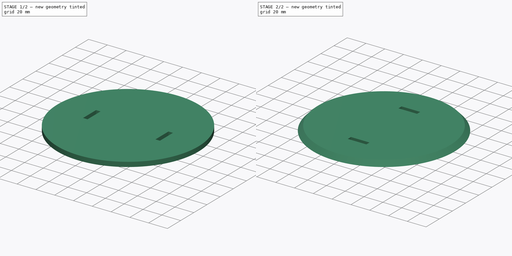
[diagram: build sequence overview — one tinted view per stage of 2, left to right]
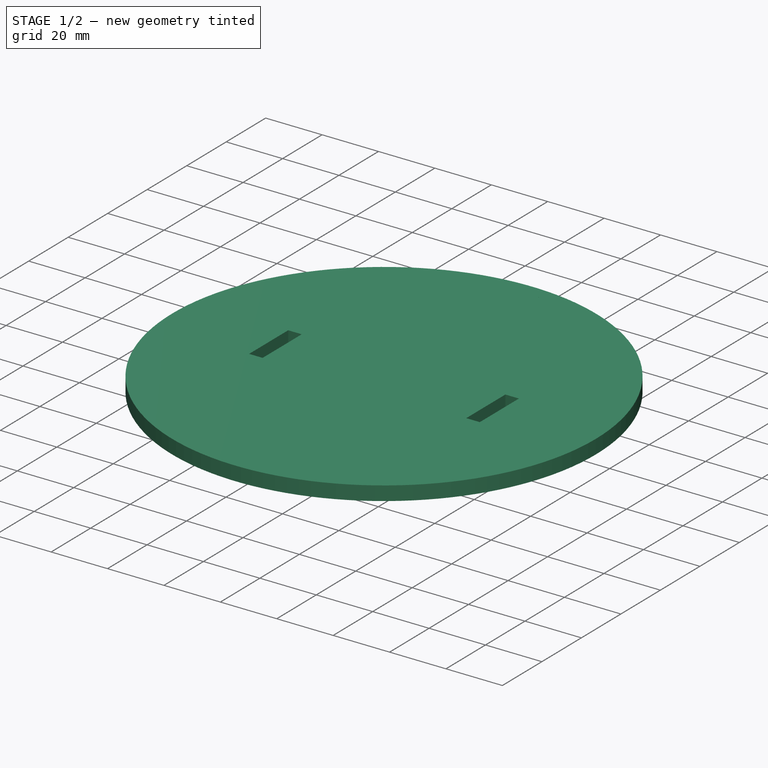
[diagram: stage 1 of 2 — iso view after this stage's code; geometry added in this stage tinted green]
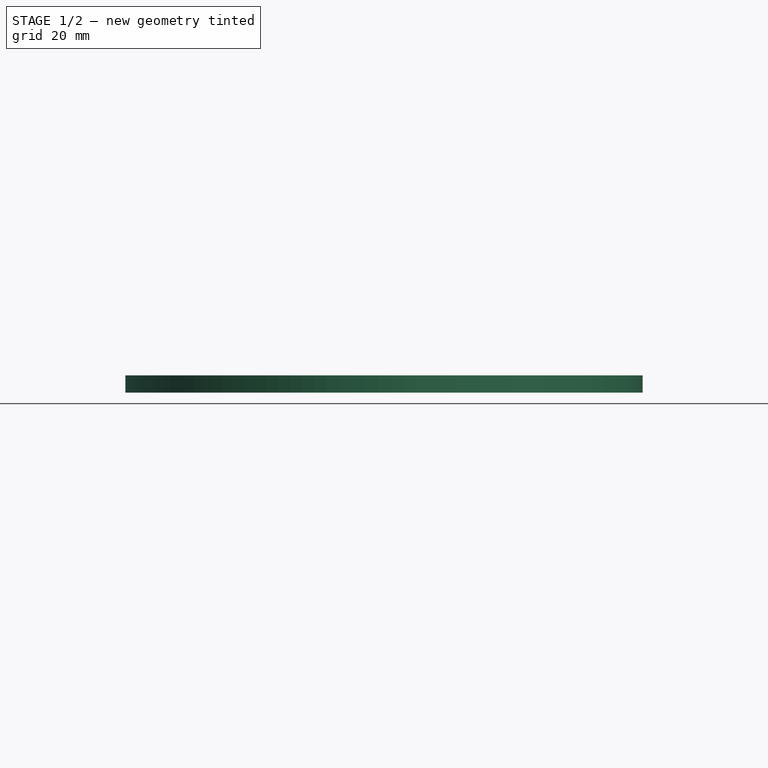
[diagram: stage 1 of 2 — front view after this stage's code; geometry added in this stage tinted green]
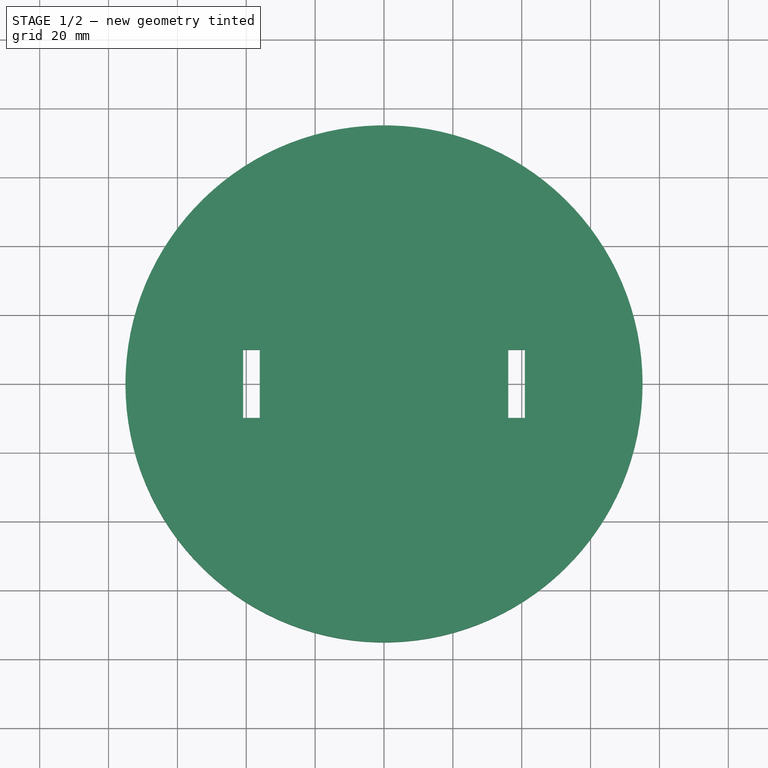
[diagram: stage 1 of 2 — top view after this stage's code; geometry added in this stage tinted green]
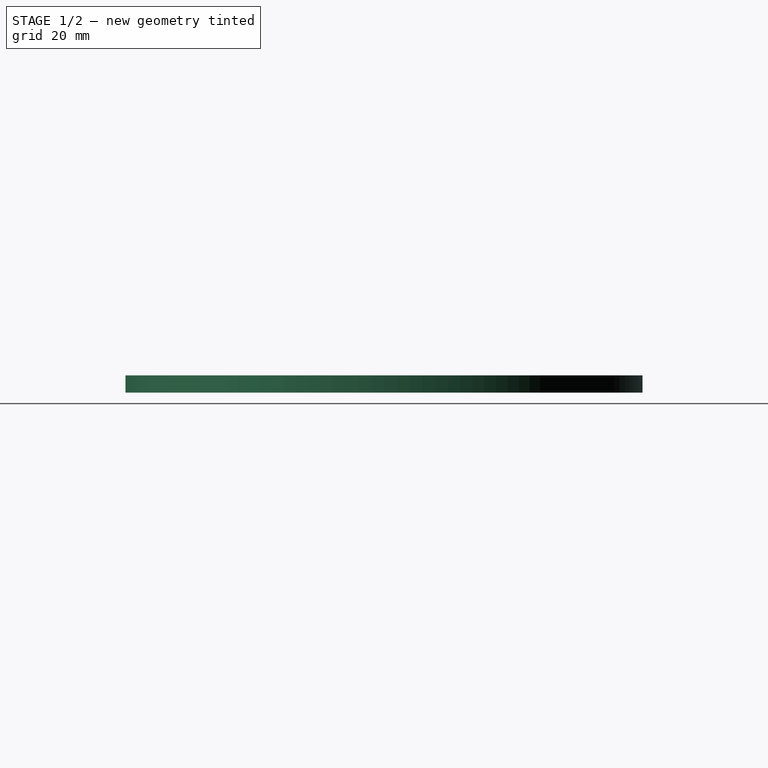
[diagram: stage 1 of 2 — right view after this stage's code; geometry added in this stage tinted green]
FCSTD DOCUMENT  (FreeCAD 0.16R6707 (Git))
Label: BowlSupport
License: All rights reserved
LicenseURL: http://en.wikipedia.org/wiki/All_rights_reserved
objects: Sketcher::SketchObject×2, PartDesign::Pad×1, PartDesign::Revolution×1, Part::Cut×1
note: 7 computed .brp shape members not serialized (recipe doc carries the construction recipe); baked Part::Feature solids carry a one-line shape summary decoded from their .brp

FEATURE [Sketcher::SketchObject] Sketch018
  sketch-geometry (9):
    g0: Circle CenterX=0 CenterY=0 CenterZ=0 NormalX=0 NormalY=0 NormalZ=1 Radius=75.1
    g1: LineSegment StartX=-40.9 StartY=9.9 StartZ=0 EndX=-36.1 EndY=9.9 EndZ=0
    g2: LineSegment StartX=-36.1 StartY=9.9 StartZ=0 EndX=-36.1 EndY=-9.9 EndZ=0
    g3: LineSegment StartX=-36.1 StartY=-9.9 StartZ=0 EndX=-40.9 EndY=-9.9 EndZ=0
    g4: LineSegment StartX=-40.9 StartY=-9.9 StartZ=0 EndX=-40.9 EndY=9.9 EndZ=0
    g5: LineSegment StartX=36.1 StartY=-9.9 StartZ=0 EndX=40.9 EndY=-9.9 EndZ=0
    g6: LineSegment StartX=40.9 StartY=-9.9 StartZ=0 EndX=40.9 EndY=9.9 EndZ=0
    g7: LineSegment StartX=40.9 StartY=9.9 StartZ=0 EndX=36.1 EndY=9.9 EndZ=0
    g8: LineSegment StartX=36.1 StartY=9.9 StartZ=0 EndX=36.1 EndY=-9.9 EndZ=0
  constraints (25):
    c: Coincident(g0,g-1)
    c: Radius(g0) = 75.1
    c: Coincident(g1,g2)
    c: Coincident(g2,g3)
    c: Coincident(g3,g4)
    c: Coincident(g4,g1)
    c: Horizontal(g1)
    c: Horizontal(g3)
    c: Vertical(g2)
    c: Vertical(g4)
    c: Coincident(g5,g6)
    c: Coincident(g6,g7)
    c: Coincident(g7,g8)
    c: Coincident(g8,g5)
    c: Horizontal(g5)
    c: Horizontal(g7)
    c: Vertical(g6)
    c: Vertical(g8)
    c: Symmetric(g1,g7,g-2)
    c: Symmetric(g1,g6,g-2)
    c: Symmetric(g5,g6,g-1)
    c: DistanceX(g1,g7) = 72.2
    c: DistanceX(g1,g1) = 4.8
    c: Symmetric(g2,g1,g-1)
    c: DistanceY(g4,g4) = 19.8
FEATURE [PartDesign::Pad] Pad018
  Length = 5
  Length2 = 100
  Sketch = -> Sketch018
  Type = 0
FEATURE [Sketcher::SketchObject] Sketch019
  Placement = pos=(0,0,0) rot=(1,0,0;1.5708rad)
  sketch-geometry (3):
    g0: LineSegment StartX=-75.1 StartY=0 StartZ=0 EndX=-75.1 EndY=5 EndZ=0
    g1: LineSegment StartX=-75.1 StartY=5 StartZ=0 EndX=-70.4628 EndY=5 EndZ=0
    g2: ArcOfCircle CenterX=0 CenterY=-65 CenterZ=0 NormalX=0 NormalY=0 NormalZ=1 Radius=99.3228 StartAngle=2.35949 EndAngle=2.42816
  constraints (11):
    c: PointOnObject(g0,g-1)
    c: Vertical(g0)
    c: Coincident(g0,g1)
    c: Horizontal(g1)
    c: DistanceY(g0,g0) = 5
    c: PointOnObject(g2,g-2)
    c: Coincident(g2,g0)
    c: Coincident(g2,g1)
    c: DistanceY(g2) = -65
    c: DistanceX(g0) = -75.1
    c: Radius(g2) = 99.3228
FEATURE [PartDesign::Revolution] Revolution
  Angle = 360
  Axis = (0,0,1)
  Base = (0,0,0)
  Placement = pos=(0,0,0) rot=(1,0,0;1.5708rad)
  ReferenceAxis = -> Sketch019 [V_Axis]
  Sketch = -> Sketch019
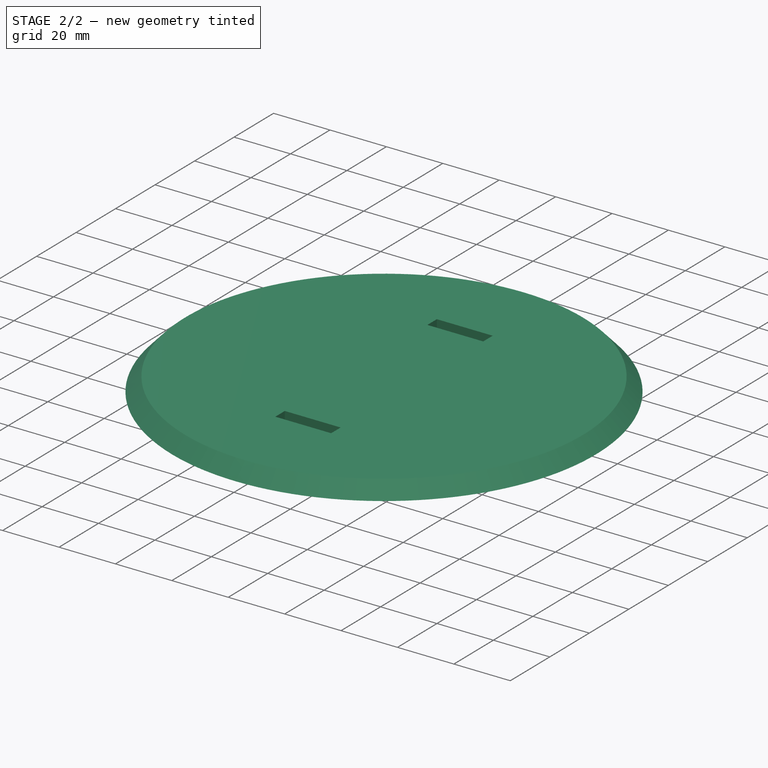
[diagram: stage 2 of 2 — iso view after this stage's code; geometry added in this stage tinted green]
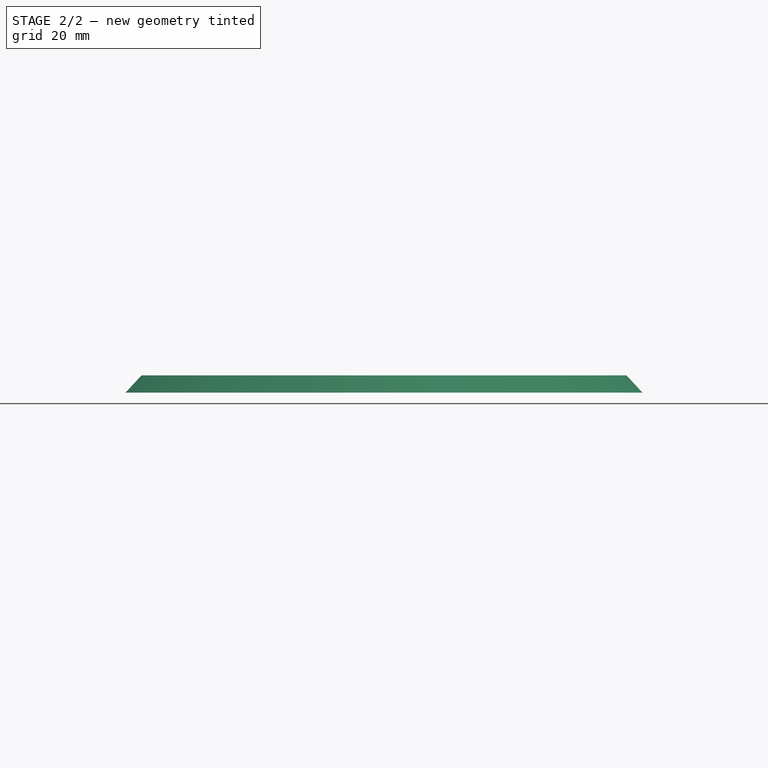
[diagram: stage 2 of 2 — front view after this stage's code; geometry added in this stage tinted green]
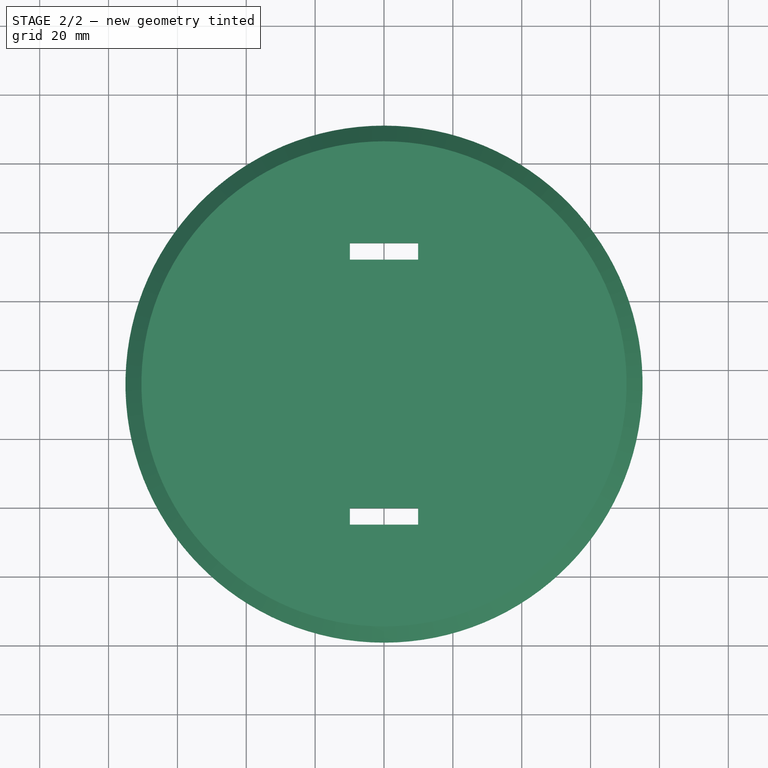
[diagram: stage 2 of 2 — top view after this stage's code; geometry added in this stage tinted green]
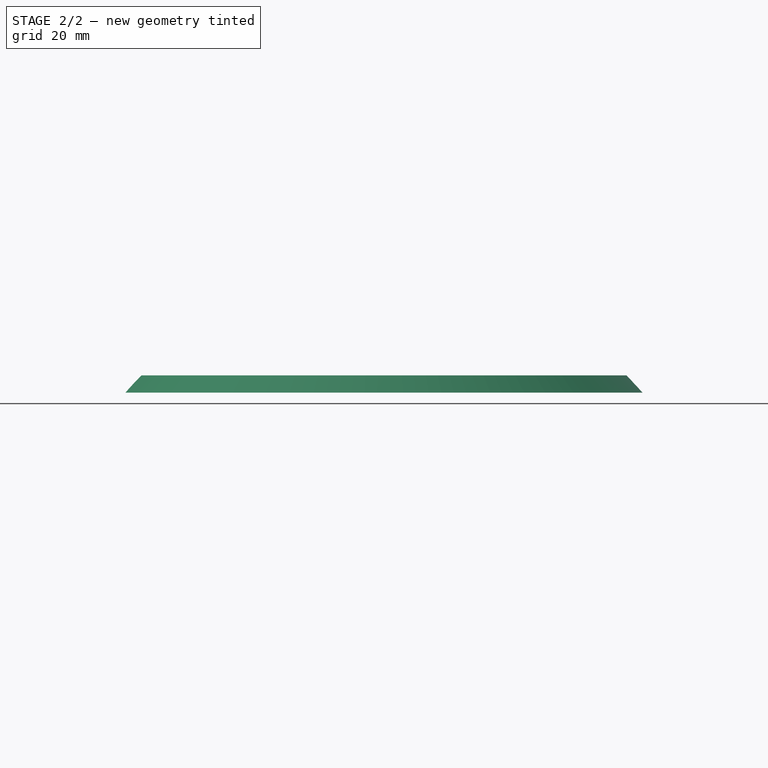
[diagram: stage 2 of 2 — right view after this stage's code; geometry added in this stage tinted green]
FEATURE [Part::Cut] Cut  label="BowlSupport"
  Base = -> Pad018
  Placement = pos=(0,36,160) rot=(0,0,1;1.5708rad)
  Tool = -> Revolution
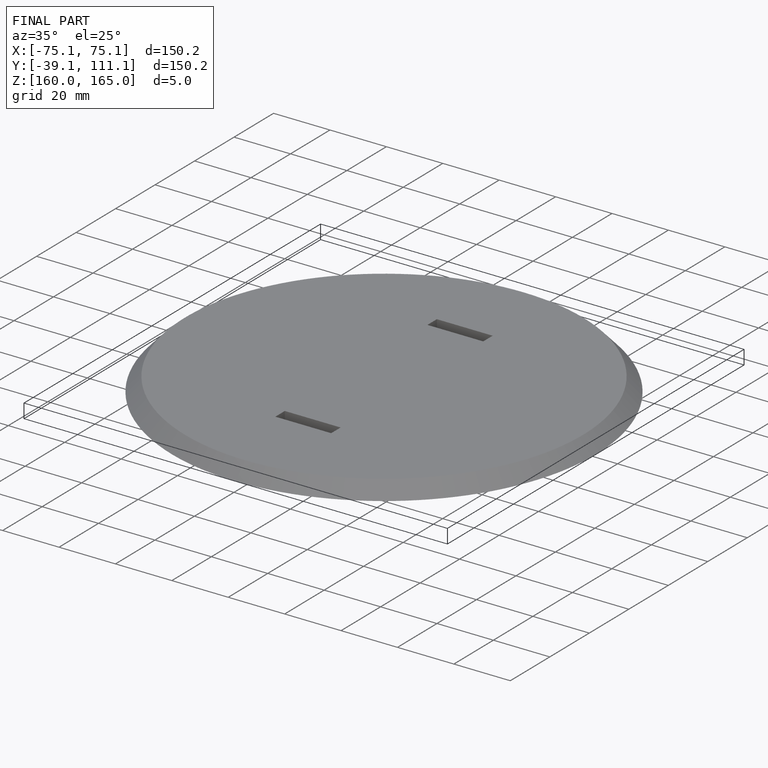
[diagram: finished part — iso view with bounding-box wireframe]
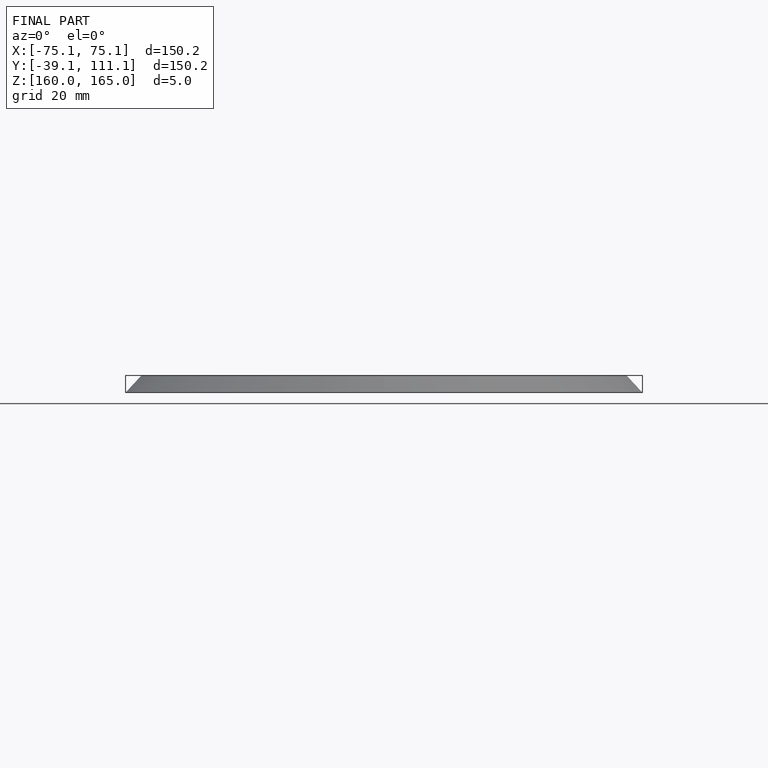
[diagram: finished part — front view with bounding-box wireframe]
